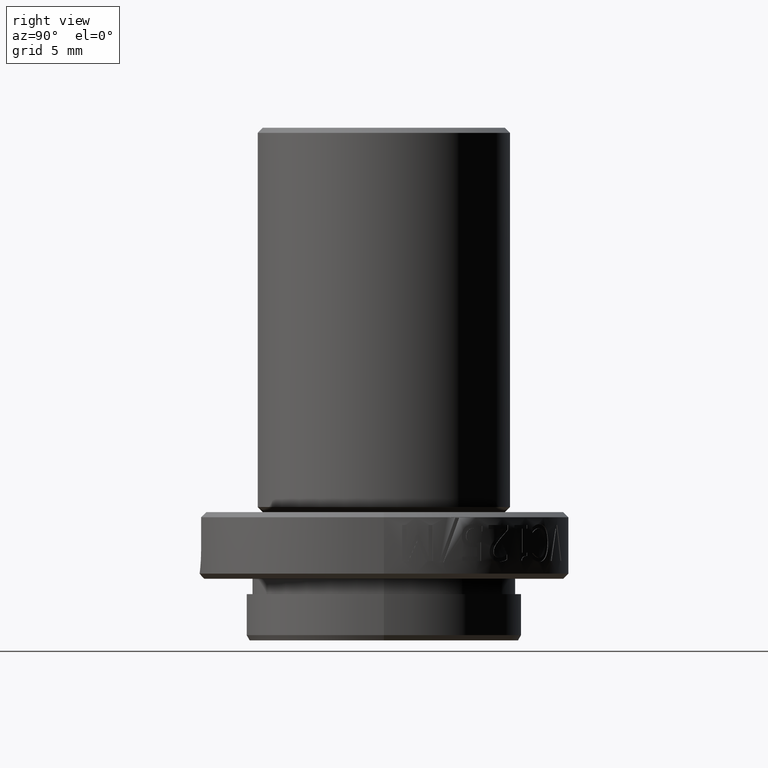
[diagram: clean part render]
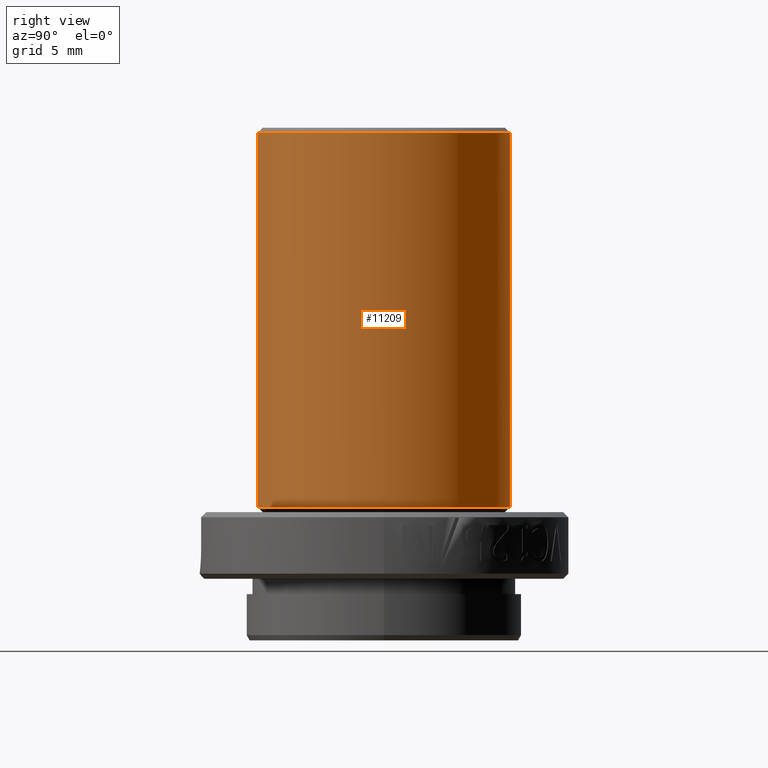
[diagram: same view with one face highlighted and labeled with its STEP entity id]
A machine part, right view. The second image highlights one B-rep face of the part: STEP entity #11209.
In plain terms, the highlighted cylindrical surface (partial cylindrical patch) has radius 6.25 mm, axis along (-0, 0, -1).
Its self-contained STEP definition (entity closure, byte-faithful):
#95 = CARTESIAN_POINT ( 'NONE',  ( -1.614520882834788370E-16, 0.2460629921259841757, 0.4000000000000001887 ) ) ;
#227 = EDGE_CURVE ( 'NONE', #22840, #242, #5234, .T. ) ;
#242 = VERTEX_POINT ( 'NONE', #20418 ) ;
#532 = CARTESIAN_POINT ( 'NONE',  ( -1.651653649955583197E-16, 0.2460629921259843422, -0.3399999999999998579 ) ) ;
#1800 = AXIS2_PLACEMENT_3D ( 'NONE', #23256, #2881, #31974 ) ;
#2881 = DIRECTION ( 'NONE',  ( -5.017941502810104978E-18, 1.292506970446266923E-16, -1.000000000000000000 ) ) ;
#4433 = VERTEX_POINT ( 'NONE', #95 ) ;
#4474 = VERTEX_POINT ( 'NONE', #6292 ) ;
#5234 = LINE ( 'NONE', #17183, #8331 ) ;
#5472 = DIRECTION ( 'NONE',  ( -1.110223024625156047E-16, 1.000000000000000000, 0.000000000000000000 ) ) ;
#6292 = CARTESIAN_POINT ( 'NONE',  ( -1.651151855805301980E-16, 0.2460629921259843422, -0.3299999999999999045 ) ) ;
#8331 = VECTOR ( 'NONE', #20166, 39.37007874015748143 ) ;
#8356 = LINE ( 'NONE', #532, #17011 ) ;
#8591 = CYLINDRICAL_SURFACE ( 'NONE', #1800, 0.2460629921259843422 ) ;
#9621 = ORIENTED_EDGE ( 'NONE', *, *, #29828, .T. ) ;
#10455 = EDGE_LOOP ( 'NONE', ( #9621, #13884, #32438, #32215 ) ) ;
#11199 = CARTESIAN_POINT ( 'NONE',  ( -1.377967056438875904E-16, -1.292506970446187374E-18, -0.3299999999999999045 ) ) ;
#11209 = ADVANCED_FACE ( 'NONE', ( #30371 ), #8591, .T. ) ;
#13884 = ORIENTED_EDGE ( 'NONE', *, *, #227, .T. ) ;
#14162 = EDGE_CURVE ( 'NONE', #4433, #4474, #8356, .T. ) ;
#14411 = CARTESIAN_POINT ( 'NONE',  ( -1.341336083468362048E-16, -9.564551581302367046E-17, 0.4000000000000001887 ) ) ;
#14643 = AXIS2_PLACEMENT_3D ( 'NONE', #14411, #34387, #5472 ) ;
#17011 = VECTOR ( 'NONE', #32279, 39.37007874015748143 ) ;
#17183 = CARTESIAN_POINT ( 'NONE',  ( -8.039437955270233138E-17, -0.2460629921259843422, -0.3399999999999998579 ) ) ;
#19563 = EDGE_CURVE ( 'NONE', #4474, #242, #37100, .T. ) ;
#20166 = DIRECTION ( 'NONE',  ( -5.017941502810104978E-18, 1.292506970446266923E-16, -1.000000000000000000 ) ) ;
#20418 = CARTESIAN_POINT ( 'NONE',  ( -7.851265148914856609E-17, -0.2460629921259842590, -0.3299999999999999045 ) ) ;
#22721 = DIRECTION ( 'NONE',  ( -1.110223024625155924E-16, 1.000000000000000000, 0.000000000000000000 ) ) ;
#22840 = VERTEX_POINT ( 'NONE', #27366 ) ;
#23256 = CARTESIAN_POINT ( 'NONE',  ( -1.378468850589156876E-16, 7.961521423648022727E-32, -0.3399999999999998579 ) ) ;
#25769 = DIRECTION ( 'NONE',  ( -5.017941502810104978E-18, 1.292506970446266923E-16, -1.000000000000000000 ) ) ;
#27366 = CARTESIAN_POINT ( 'NONE',  ( -7.668110284062287326E-17, -0.2460629921259844533, 0.4000000000000001887 ) ) ;
#29828 = EDGE_CURVE ( 'NONE', #4433, #22840, #33637, .T. ) ;
#30371 = FACE_OUTER_BOUND ( 'NONE', #10455, .T. ) ;
#31911 = AXIS2_PLACEMENT_3D ( 'NONE', #11199, #25769, #22721 ) ;
#31974 = DIRECTION ( 'NONE',  ( -1.110223024625155924E-16, 1.000000000000000000, 0.000000000000000000 ) ) ;
#32215 = ORIENTED_EDGE ( 'NONE', *, *, #14162, .F. ) ;
#32279 = DIRECTION ( 'NONE',  ( -5.017941502810104978E-18, 1.292506970446266923E-16, -1.000000000000000000 ) ) ;
#32438 = ORIENTED_EDGE ( 'NONE', *, *, #19563, .F. ) ;
#33637 = CIRCLE ( 'NONE', #14643, 0.2460629921259843145 ) ;
#34387 = DIRECTION ( 'NONE',  ( -5.017941502810104978E-18, 1.292506970446266923E-16, -1.000000000000000000 ) ) ;
#37100 = CIRCLE ( 'NONE', #31911, 0.2460629921259843422 ) ;